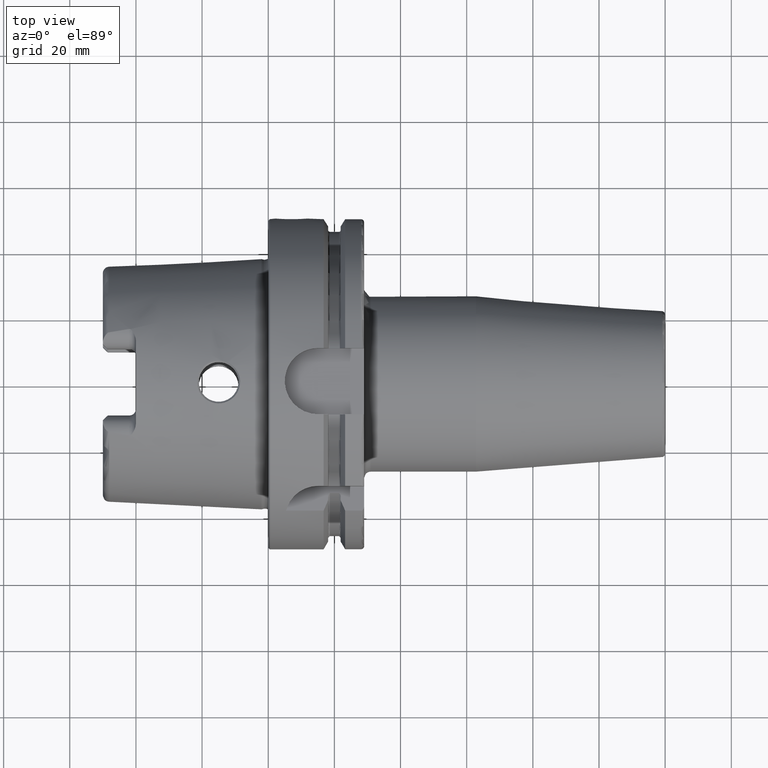
[diagram: clean part render]
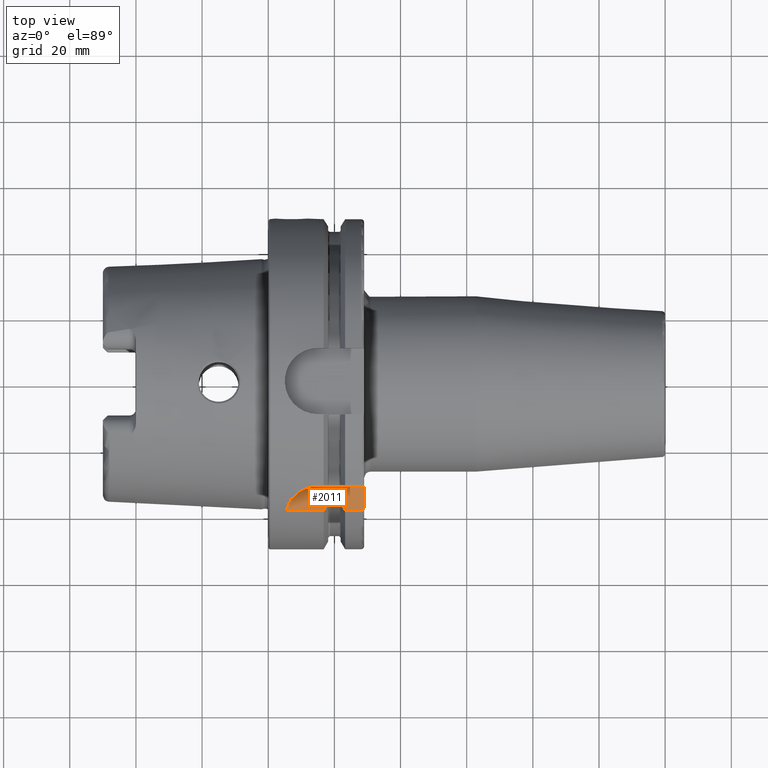
[diagram: same view with one face highlighted and labeled with its STEP entity id]
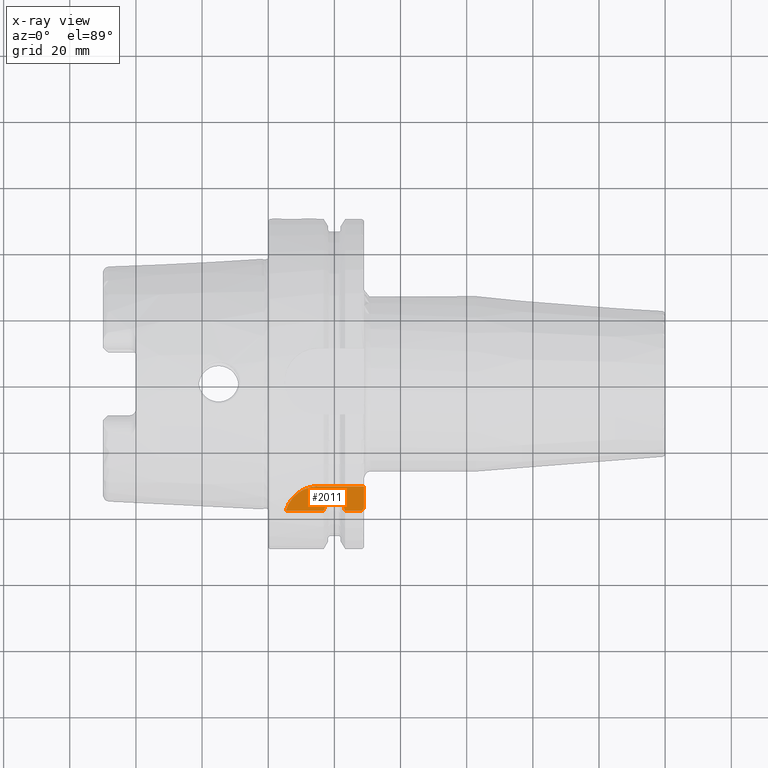
[diagram: x-ray of the same camera — body ghosted, the highlighted face saturated]
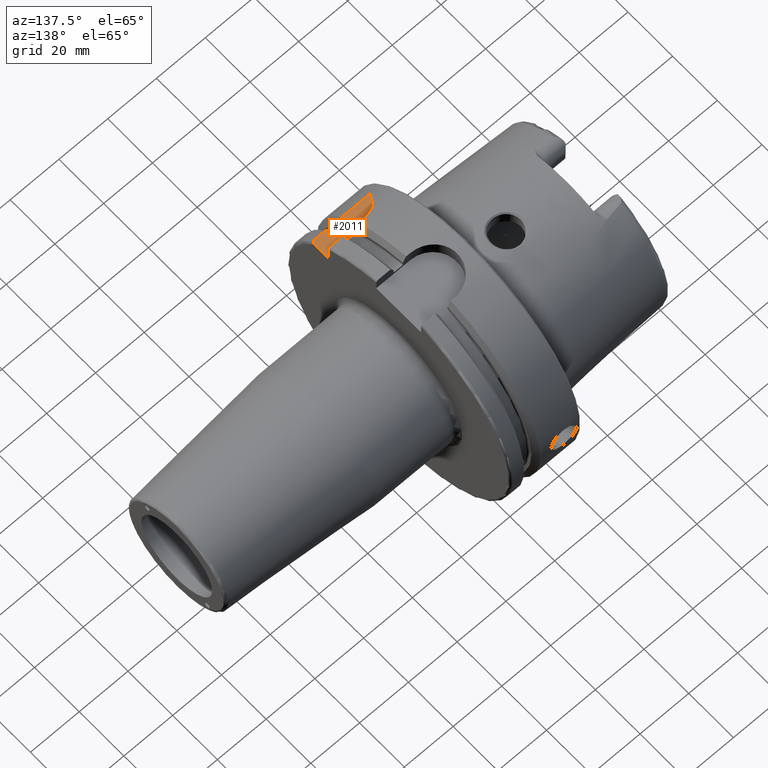
[diagram: same view with one face highlighted and labeled with its STEP entity id]
A machine part, top view. The second image highlights one B-rep face of the part: STEP entity #2011.
The next image is the same camera in x-ray: the body ghosted, the highlighted face saturated — about 0% of this face is hidden behind the body in this view.
A second angle (auxiliary view) of the same face is appended — the face is thin or edge-on in the first view.
In plain terms, the highlighted planar face has unit normal (0, 0, 1).
Its self-contained STEP definition (entity closure, byte-faithful):
#19=(
BOUNDED_CURVE()
B_SPLINE_CURVE(2,(#3943,#3944,#3945),.UNSPECIFIED.,.F.,.F.)
B_SPLINE_CURVE_WITH_KNOTS((3,3),(0.,0.343884390880417),.UNSPECIFIED.)
CURVE()
GEOMETRIC_REPRESENTATION_ITEM()
RATIONAL_B_SPLINE_CURVE((1.,1.00052016257104,1.))
REPRESENTATION_ITEM('')
);
#20=(
BOUNDED_CURVE()
B_SPLINE_CURVE(2,(#3975,#3976,#3977),.UNSPECIFIED.,.F.,.F.)
B_SPLINE_CURVE_WITH_KNOTS((3,3),(0.,0.343884390880419),.UNSPECIFIED.)
CURVE()
GEOMETRIC_REPRESENTATION_ITEM()
RATIONAL_B_SPLINE_CURVE((1.,1.00052016257005,1.))
REPRESENTATION_ITEM('')
);
#62=B_SPLINE_CURVE_WITH_KNOTS('',3,(#3949,#3950,#3951,#3952,#3953,#3954,
#3955,#3956,#3957,#3958),.UNSPECIFIED.,.F.,.F.,(4,2,2,2,4),(-0.175716275951496,
-0.15902214964786,-0.139262857016594,-0.115342898112829,-0.0876407705892815),
 .UNSPECIFIED.);
#63=B_SPLINE_CURVE_WITH_KNOTS('',3,(#3962,#3963,#3964,#3965,#3966,#3967,
#3968,#3969,#3970,#3971),.UNSPECIFIED.,.F.,.F.,(4,2,2,2,4),(0.0876407705892814,
0.115342898112828,0.139262857016592,0.15902214964786,0.175716275951495),
 .UNSPECIFIED.);
#64=B_SPLINE_CURVE_WITH_KNOTS('',3,(#3980,#3981,#3982,#3983,#3984,#3985,
#3986,#3987,#3988,#3989),.UNSPECIFIED.,.F.,.F.,(4,2,2,2,4),(-0.170825962094808,
-0.118543630596578,-0.0729156509442915,-0.0340271521483428,0.),
 .UNSPECIFIED.);
#112=PLANE('',#2215);
#249=FACE_OUTER_BOUND('',#376,.T.);
#376=EDGE_LOOP('',(#1552,#1553,#1554,#1555,#1556,#1557,#1558,#1559,#1560,
#1561,#1562,#1563,#1564));
#465=LINE('',#3039,#572);
#505=LINE('',#3890,#612);
#510=LINE('',#3941,#617);
#511=LINE('',#3947,#618);
#512=LINE('',#3960,#619);
#513=LINE('',#3973,#620);
#514=LINE('',#3979,#621);
#572=VECTOR('',#2425,10.);
#612=VECTOR('',#2623,10.);
#617=VECTOR('',#2630,10.);
#618=VECTOR('',#2631,10.);
#619=VECTOR('',#2632,10.);
#620=VECTOR('',#2633,10.);
#621=VECTOR('',#2634,10.);
#726=CIRCLE('',#2213,10.);
#817=VERTEX_POINT('',#3037);
#818=VERTEX_POINT('',#3038);
#905=VERTEX_POINT('',#3870);
#907=VERTEX_POINT('',#3884);
#917=VERTEX_POINT('',#3940);
#918=VERTEX_POINT('',#3942);
#919=VERTEX_POINT('',#3946);
#920=VERTEX_POINT('',#3948);
#921=VERTEX_POINT('',#3959);
#922=VERTEX_POINT('',#3961);
#923=VERTEX_POINT('',#3972);
#924=VERTEX_POINT('',#3974);
#925=VERTEX_POINT('',#3978);
#1028=EDGE_CURVE('',#817,#818,#465,.T.);
#1145=EDGE_CURVE('',#907,#905,#726,.T.);
#1148=EDGE_CURVE('',#817,#907,#505,.T.);
#1158=EDGE_CURVE('',#917,#905,#510,.T.);
#1159=EDGE_CURVE('',#918,#917,#19,.T.);
#1160=EDGE_CURVE('',#919,#918,#511,.T.);
#1161=EDGE_CURVE('',#920,#919,#62,.T.);
#1162=EDGE_CURVE('',#921,#920,#512,.T.);
#1163=EDGE_CURVE('',#922,#921,#63,.T.);
#1164=EDGE_CURVE('',#923,#922,#513,.T.);
#1165=EDGE_CURVE('',#924,#923,#20,.T.);
#1166=EDGE_CURVE('',#925,#924,#514,.T.);
#1167=EDGE_CURVE('',#818,#925,#64,.T.);
#1552=ORIENTED_EDGE('',*,*,#1158,.F.);
#1553=ORIENTED_EDGE('',*,*,#1159,.F.);
#1554=ORIENTED_EDGE('',*,*,#1160,.F.);
#1555=ORIENTED_EDGE('',*,*,#1161,.F.);
#1556=ORIENTED_EDGE('',*,*,#1162,.F.);
#1557=ORIENTED_EDGE('',*,*,#1163,.F.);
#1558=ORIENTED_EDGE('',*,*,#1164,.F.);
#1559=ORIENTED_EDGE('',*,*,#1165,.F.);
#1560=ORIENTED_EDGE('',*,*,#1166,.F.);
#1561=ORIENTED_EDGE('',*,*,#1167,.F.);
#1562=ORIENTED_EDGE('',*,*,#1028,.F.);
#1563=ORIENTED_EDGE('',*,*,#1148,.T.);
#1564=ORIENTED_EDGE('',*,*,#1145,.T.);
#2011=ADVANCED_FACE('',(#249),#112,.T.);
#2213=AXIS2_PLACEMENT_3D('',#3885,#2617,#2618);
#2215=AXIS2_PLACEMENT_3D('',#3939,#2628,#2629);
#2425=DIRECTION('',(0.,-1.,0.));
#2617=DIRECTION('center_axis',(0.,0.,1.));
#2618=DIRECTION('ref_axis',(0.,1.,0.));
#2623=DIRECTION('',(-1.,3.17206578464331E-16,0.));
#2628=DIRECTION('center_axis',(0.,0.,1.));
#2629=DIRECTION('ref_axis',(1.,0.,0.));
#2630=DIRECTION('',(-1.,0.,0.));
#2631=DIRECTION('',(0.,-1.,0.));
#2632=DIRECTION('',(-1.,0.,0.));
#2633=DIRECTION('',(0.,1.,0.));
#2634=DIRECTION('',(-1.,0.,0.));
#3037=CARTESIAN_POINT('',(29.,-31.5,31.5));
#3038=CARTESIAN_POINT('',(29.,-37.5333185316726,31.5));
#3039=CARTESIAN_POINT('',(29.,-18.25,31.5));
#3870=CARTESIAN_POINT('',(5.36310214079494,-38.8297566307078,31.5));
#3884=CARTESIAN_POINT('',(15.,-31.5,31.5));
#3885=CARTESIAN_POINT('Origin',(15.,-41.5,31.5));
#3890=CARTESIAN_POINT('',(29.,-31.5,31.5));
#3939=CARTESIAN_POINT('Origin',(17.,-36.5,31.5));
#3940=CARTESIAN_POINT('',(16.7379709790786,-38.8297566307078,31.5));
#3941=CARTESIAN_POINT('',(8.61898548953931,-38.8297566307078,31.5));
#3942=CARTESIAN_POINT('',(18.125,-35.6830642593065,31.5));
#3943=CARTESIAN_POINT('Ctrl Pts',(18.125,-35.6830642593066,31.5));
#3944=CARTESIAN_POINT('Ctrl Pts',(17.4607727557241,-37.2176818849689,31.5));
#3945=CARTESIAN_POINT('Ctrl Pts',(16.7379709790786,-38.8297566307079,31.5));
#3946=CARTESIAN_POINT('',(18.125,-34.2052627529741,31.5));
#3947=CARTESIAN_POINT('',(18.125,5.,31.5));
#3948=CARTESIAN_POINT('',(18.625,-33.5223805837235,31.5));
#3949=CARTESIAN_POINT('Ctrl Pts',(18.625,-33.5223805837235,31.5));
#3950=CARTESIAN_POINT('Ctrl Pts',(18.5693529123212,-33.5223805837235,31.5));
#3951=CARTESIAN_POINT('Ctrl Pts',(18.5045806209474,-33.538617945543,31.5));
#3952=CARTESIAN_POINT('Ctrl Pts',(18.3957531993943,-33.5926698815421,31.5));
#3953=CARTESIAN_POINT('Ctrl Pts',(18.3354671583148,-33.6437821851056,31.5));
#3954=CARTESIAN_POINT('Ctrl Pts',(18.2428076522704,-33.7560891280603,31.5));
#3955=CARTESIAN_POINT('Ctrl Pts',(18.1981986617216,-33.8407334953009,31.5));
#3956=CARTESIAN_POINT('Ctrl Pts',(18.1422893312478,-34.003470946295,31.5));
#3957=CARTESIAN_POINT('Ctrl Pts',(18.125,-34.1129223278956,31.5));
#3958=CARTESIAN_POINT('Ctrl Pts',(18.125,-34.2052627529741,31.5));
#3959=CARTESIAN_POINT('',(21.375,-33.5223805837235,31.5));
#3960=CARTESIAN_POINT('',(20.,-33.5223805837235,31.5));
#3961=CARTESIAN_POINT('',(21.875,-34.2052627529741,31.5));
#3962=CARTESIAN_POINT('Ctrl Pts',(21.875,-34.2052627529741,31.5));
#3963=CARTESIAN_POINT('Ctrl Pts',(21.875,-34.1129223278957,31.5));
#3964=CARTESIAN_POINT('Ctrl Pts',(21.8577106687523,-34.003470946295,31.5));
#3965=CARTESIAN_POINT('Ctrl Pts',(21.8018013382784,-33.8407334953009,31.5));
#3966=CARTESIAN_POINT('Ctrl Pts',(21.7571923477296,-33.7560891280604,31.5));
#3967=CARTESIAN_POINT('Ctrl Pts',(21.6645328416852,-33.6437821851056,31.5));
#3968=CARTESIAN_POINT('Ctrl Pts',(21.6042468006057,-33.5926698815421,31.5));
#3969=CARTESIAN_POINT('Ctrl Pts',(21.4954193790526,-33.538617945543,31.5));
#3970=CARTESIAN_POINT('Ctrl Pts',(21.4306470876788,-33.5223805837235,31.5));
#3971=CARTESIAN_POINT('Ctrl Pts',(21.375,-33.5223805837235,31.5));
#3972=CARTESIAN_POINT('',(21.875,-35.6830642593065,31.5));
#3973=CARTESIAN_POINT('',(21.875,5.54879763209582,31.5));
#3974=CARTESIAN_POINT('',(23.2620290209214,-38.8297566307078,31.5));
#3975=CARTESIAN_POINT('Ctrl Pts',(23.2620290209214,-38.8297566307078,31.5));
#3976=CARTESIAN_POINT('Ctrl Pts',(22.5392272442767,-37.2176818849707,31.5));
#3977=CARTESIAN_POINT('Ctrl Pts',(21.875,-35.6830642593065,31.5));
#3978=CARTESIAN_POINT('',(28.,-38.8297566307078,31.5));
#3979=CARTESIAN_POINT('',(25.6310145104607,-38.8297566307078,31.5));
#3980=CARTESIAN_POINT('Ctrl Pts',(29.,-37.5333185316726,31.5));
#3981=CARTESIAN_POINT('Ctrl Pts',(29.,-37.7075929700001,31.5));
#3982=CARTESIAN_POINT('Ctrl Pts',(28.9664820083304,-37.9140187901503,31.5));
#3983=CARTESIAN_POINT('Ctrl Pts',(28.8572425149189,-38.2215616508799,31.5));
#3984=CARTESIAN_POINT('Ctrl Pts',(28.7693181429129,-38.3814988424326,31.5));
#3985=CARTESIAN_POINT('Ctrl Pts',(28.5860354601279,-38.5954486383736,31.5));
#3986=CARTESIAN_POINT('Ctrl Pts',(28.4650491410143,-38.6932205975694,31.5));
#3987=CARTESIAN_POINT('Ctrl Pts',(28.2458099245109,-38.7981421072727,31.5));
#3988=CARTESIAN_POINT('Ctrl Pts',(28.1134238404945,-38.8297566307078,31.5));
#3989=CARTESIAN_POINT('Ctrl Pts',(28.,-38.8297566307078,31.5));